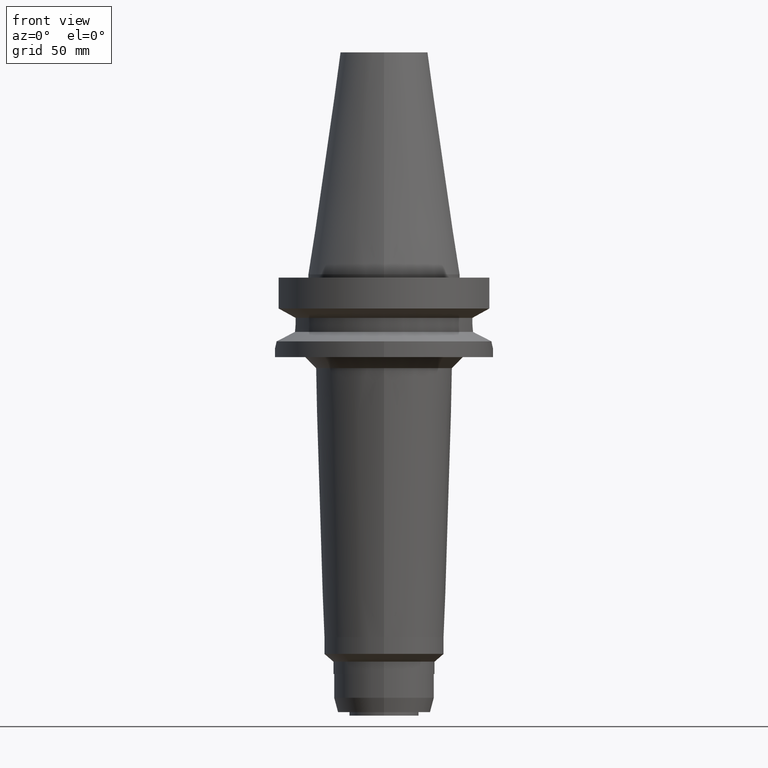
[diagram: clean part render]
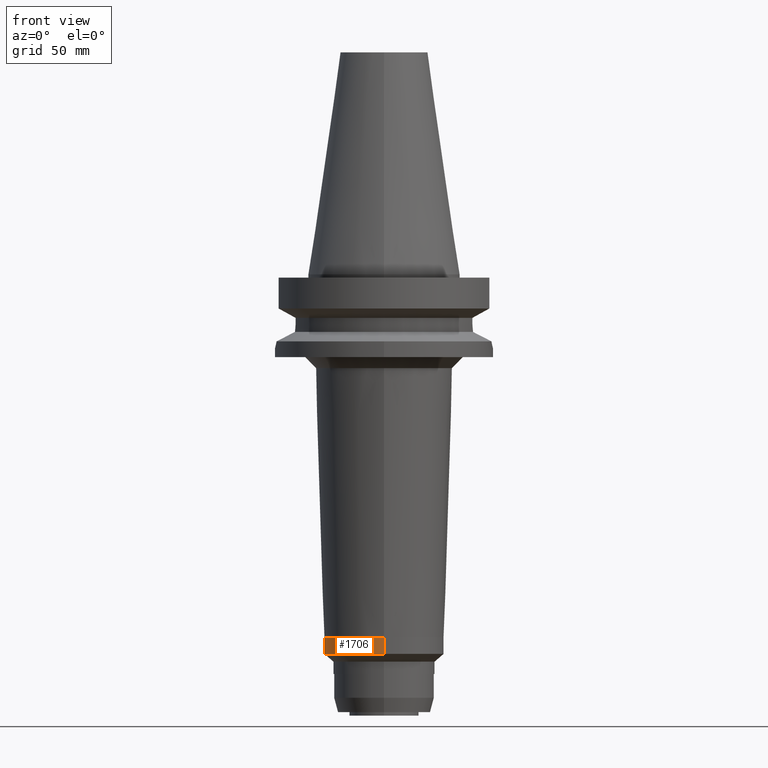
[diagram: same view with one face highlighted and labeled with its STEP entity id]
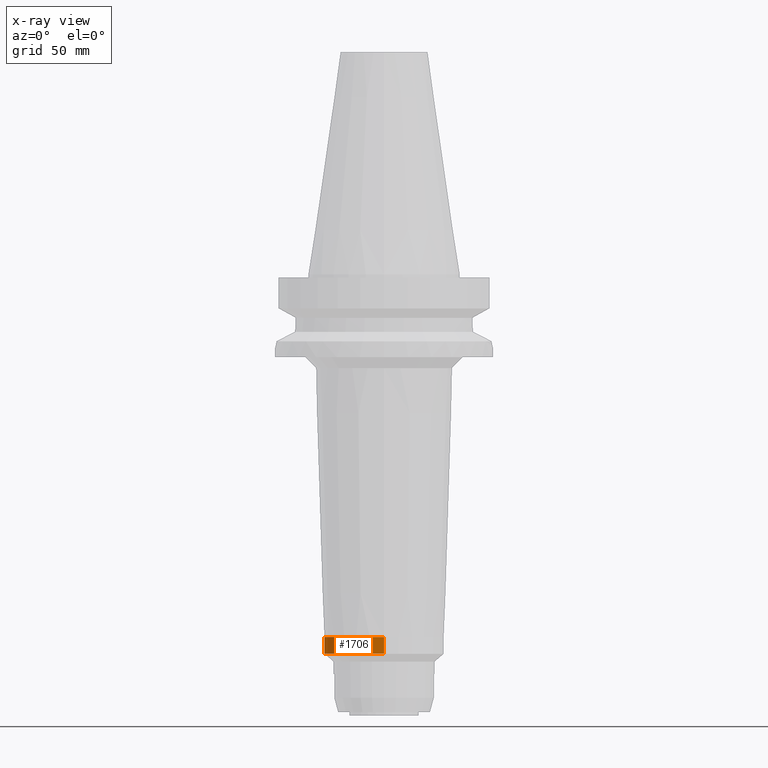
[diagram: x-ray of the same camera — body ghosted, the highlighted face saturated]
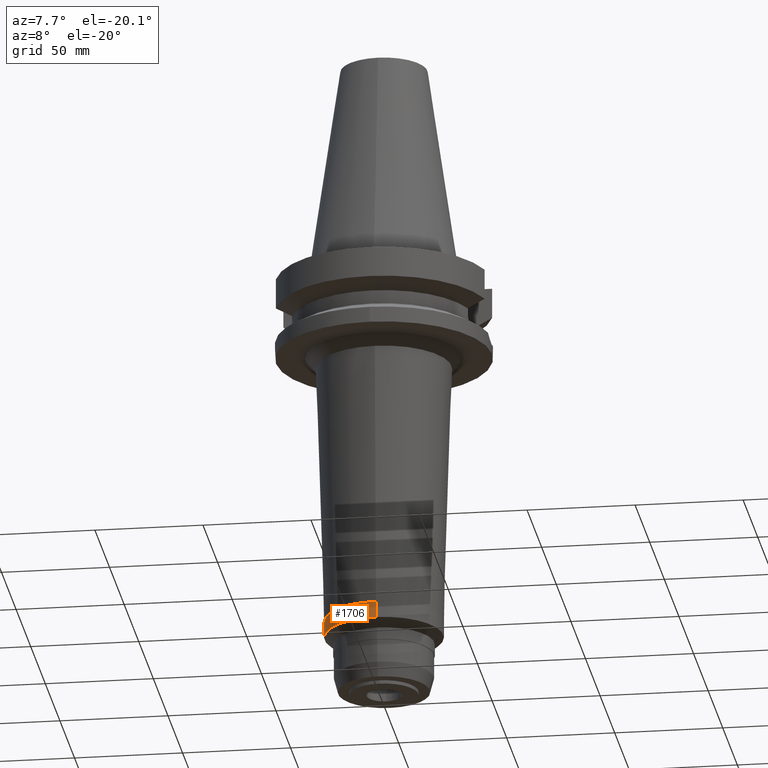
[diagram: same view with one face highlighted and labeled with its STEP entity id]
A machine part, front view. The second image highlights one B-rep face of the part: STEP entity #1706.
The next image is the same camera in x-ray: the body ghosted, the highlighted face saturated — about 0% of this face is hidden behind the body in this view.
A second angle (auxiliary view) of the same face is appended — the face is thin or edge-on in the first view.
In plain terms, the highlighted cylindrical surface (partial cylindrical patch) has radius 27.5 mm, axis along (0, 0, -1).
Its self-contained STEP definition (entity closure, byte-faithful):
#368=CARTESIAN_POINT('',(0.E0,0.E0,-1.741E2));
#369=DIRECTION('',(0.E0,0.E0,1.E0));
#370=DIRECTION('',(0.E0,1.E0,0.E0));
#371=AXIS2_PLACEMENT_3D('',#368,#369,#370);
#414=DIRECTION('',(0.E0,-1.191312560867E-12,-1.E0));
#415=VECTOR('',#414,7.699999999991E0);
#416=CARTESIAN_POINT('',(0.E0,2.75E1,-1.664E2));
#417=LINE('',#416,#415);
#421=DIRECTION('',(0.E0,1.190851169480E-12,-1.E0));
#422=VECTOR('',#421,7.699999999991E0);
#423=CARTESIAN_POINT('',(0.E0,-2.75E1,-1.664E2));
#424=LINE('',#423,#422);
#435=CARTESIAN_POINT('',(0.E0,0.E0,-1.664E2));
#436=DIRECTION('',(0.E0,0.E0,-1.E0));
#437=DIRECTION('',(0.E0,-1.E0,0.E0));
#438=AXIS2_PLACEMENT_3D('',#435,#436,#437);
#1192=CARTESIAN_POINT('',(0.E0,2.749999999999E1,-1.741E2));
#1193=VERTEX_POINT('',#1192);
#1194=CARTESIAN_POINT('',(0.E0,-2.749999999998E1,-1.741E2));
#1195=VERTEX_POINT('',#1194);
#1196=CARTESIAN_POINT('',(0.E0,2.75E1,-1.664E2));
#1197=VERTEX_POINT('',#1196);
#1198=CARTESIAN_POINT('',(0.E0,-2.75E1,-1.664E2));
#1199=VERTEX_POINT('',#1198);
#1694=CARTESIAN_POINT('',(0.E0,2.657606018830E-14,1.1701E2));
#1695=DIRECTION('',(0.E0,0.E0,-1.E0));
#1696=DIRECTION('',(0.E0,-1.E0,0.E0));
#1697=AXIS2_PLACEMENT_3D('',#1694,#1695,#1696);
#1698=CYLINDRICAL_SURFACE('',#1697,2.75E1);
#1699=ORIENTED_EDGE('',*,*,#1684,.F.);
#1701=ORIENTED_EDGE('',*,*,#1700,.F.);
#1702=ORIENTED_EDGE('',*,*,#1687,.T.);
#1703=ORIENTED_EDGE('',*,*,#1658,.F.);
#1704=EDGE_LOOP('',(#1699,#1701,#1702,#1703));
#1705=FACE_OUTER_BOUND('',#1704,.F.);
#372=CIRCLE('',#371,2.749999999998E1);
#439=CIRCLE('',#438,2.75E1);
#1658=EDGE_CURVE('',#1193,#1195,#372,.T.);
#1684=EDGE_CURVE('',#1197,#1193,#417,.T.);
#1687=EDGE_CURVE('',#1199,#1195,#424,.T.);
#1700=EDGE_CURVE('',#1199,#1197,#439,.T.);
#1706=ADVANCED_FACE('',(#1705),#1698,.T.);